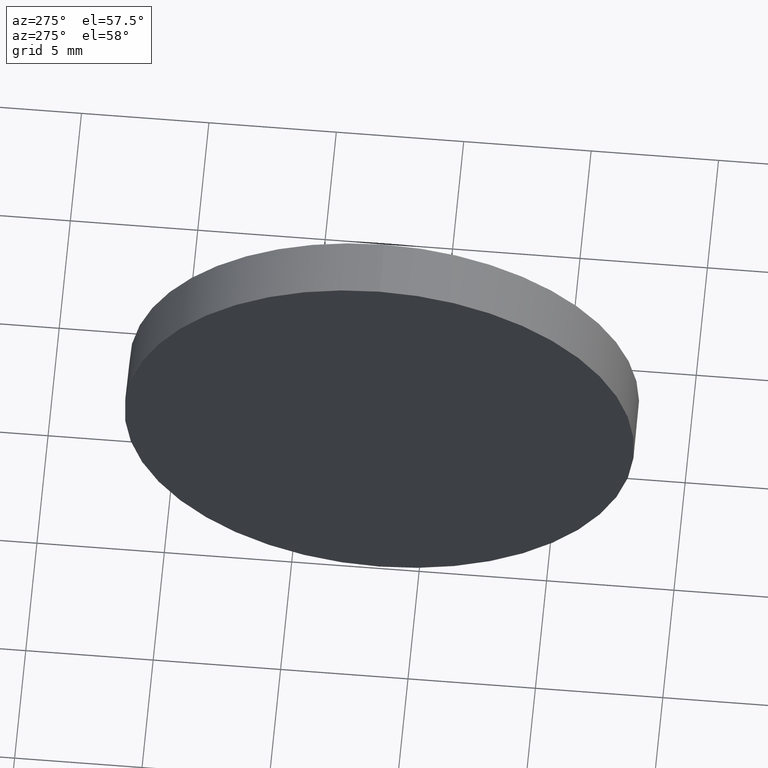
[diagram: clean part render]
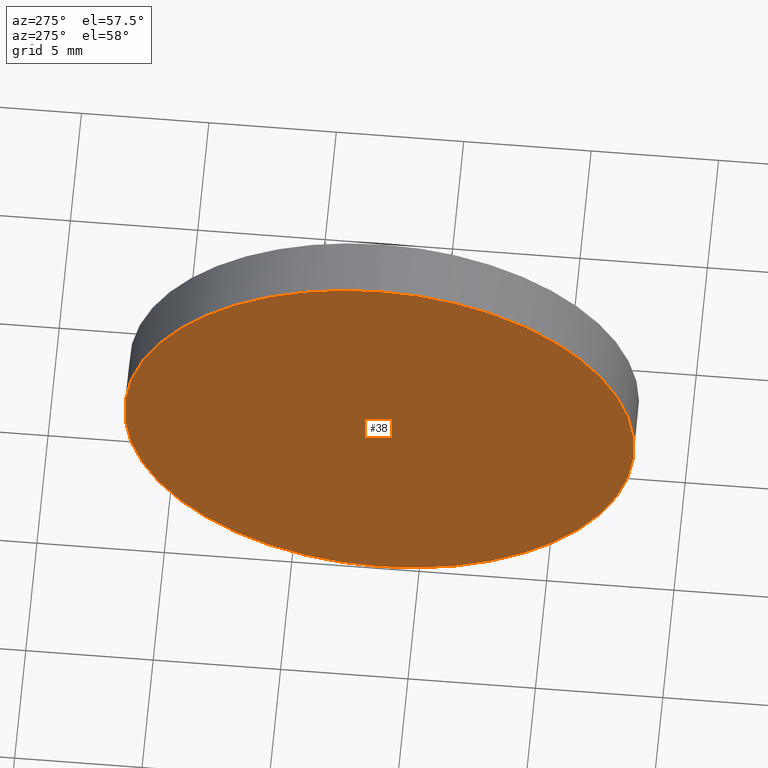
[diagram: same view with one face highlighted and labeled with its STEP entity id]
A machine part, auxiliary view. The second image highlights one B-rep face of the part: STEP entity #38.
In plain terms, the highlighted planar face has unit normal (1, 0, 0).
Its self-contained STEP definition (entity closure, byte-faithful):
#3 = AXIS2_PLACEMENT_3D ( 'NONE', #147, #178, #42 ) ;
#6 = PLANE ( 'NONE',  #109 ) ;
#14 = DIRECTION ( 'NONE',  ( 1.000000000000000000, 0.0000000000000000000, 0.0000000000000000000 ) ) ;
#17 = CARTESIAN_POINT ( 'NONE',  ( 404.8137183694385000, 21.54680395939442400, 0.0000000000000000000 ) ) ;
#26 = EDGE_LOOP ( 'NONE', ( #173, #153 ) ) ;
#38 = ADVANCED_FACE ( 'NONE', ( #112 ), #6, .F. ) ;
#40 = DIRECTION ( 'NONE',  ( 0.0000000000000000000, 0.0000000000000000000, -1.000000000000000000 ) ) ;
#42 = DIRECTION ( 'NONE',  ( 0.0000000000000000000, 0.0000000000000000000, 1.000000000000000000 ) ) ;
#56 = CIRCLE ( 'NONE', #3, 9.999999999999998200 ) ;
#71 = EDGE_CURVE ( 'NONE', #82, #123, #56, .T. ) ;
#73 = CARTESIAN_POINT ( 'NONE',  ( 404.8137183694385000, 21.54680395939442400, -9.999999999999998200 ) ) ;
#82 = VERTEX_POINT ( 'NONE', #73 ) ;
#91 = AXIS2_PLACEMENT_3D ( 'NONE', #17, #114, #130 ) ;
#102 = CARTESIAN_POINT ( 'NONE',  ( 404.8137183694385000, 21.54680395939442400, 0.0000000000000000000 ) ) ;
#109 = AXIS2_PLACEMENT_3D ( 'NONE', #102, #14, #40 ) ;
#112 = FACE_OUTER_BOUND ( 'NONE', #26, .T. ) ;
#114 = DIRECTION ( 'NONE',  ( -1.000000000000000000, -0.0000000000000000000, -0.0000000000000000000 ) ) ;
#123 = VERTEX_POINT ( 'NONE', #180 ) ;
#130 = DIRECTION ( 'NONE',  ( 0.0000000000000000000, 0.0000000000000000000, 1.000000000000000000 ) ) ;
#140 = CIRCLE ( 'NONE', #91, 9.999999999999998200 ) ;
#141 = EDGE_CURVE ( 'NONE', #123, #82, #140, .T. ) ;
#147 = CARTESIAN_POINT ( 'NONE',  ( 404.8137183694385000, 21.54680395939442400, 0.0000000000000000000 ) ) ;
#153 = ORIENTED_EDGE ( 'NONE', *, *, #71, .T. ) ;
#173 = ORIENTED_EDGE ( 'NONE', *, *, #141, .T. ) ;
#178 = DIRECTION ( 'NONE',  ( -1.000000000000000000, -0.0000000000000000000, -0.0000000000000000000 ) ) ;
#180 = CARTESIAN_POINT ( 'NONE',  ( 404.8137183694385000, 21.54680395939442400, 9.999999999999998200 ) ) ;